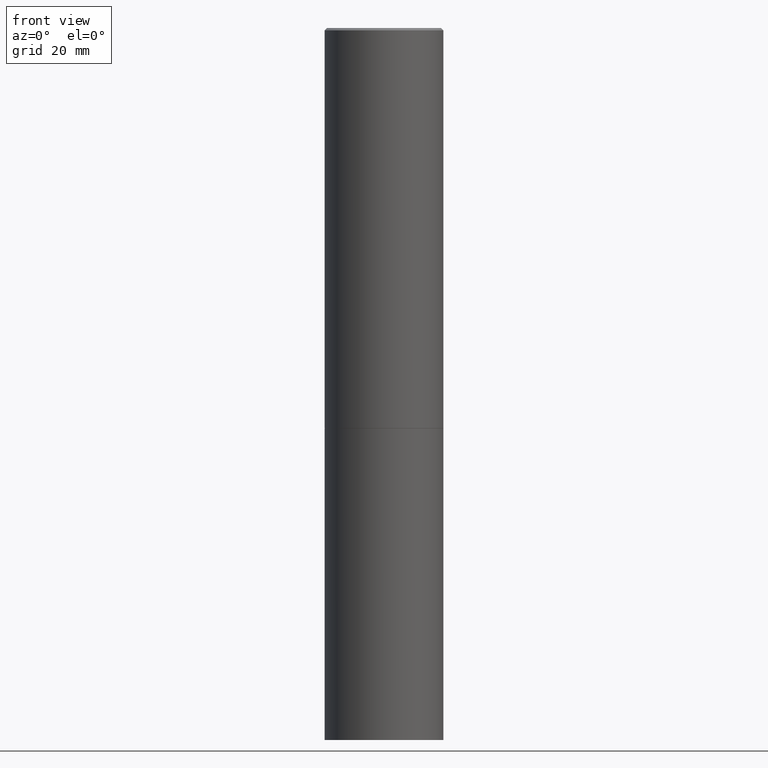
[diagram: clean part render]
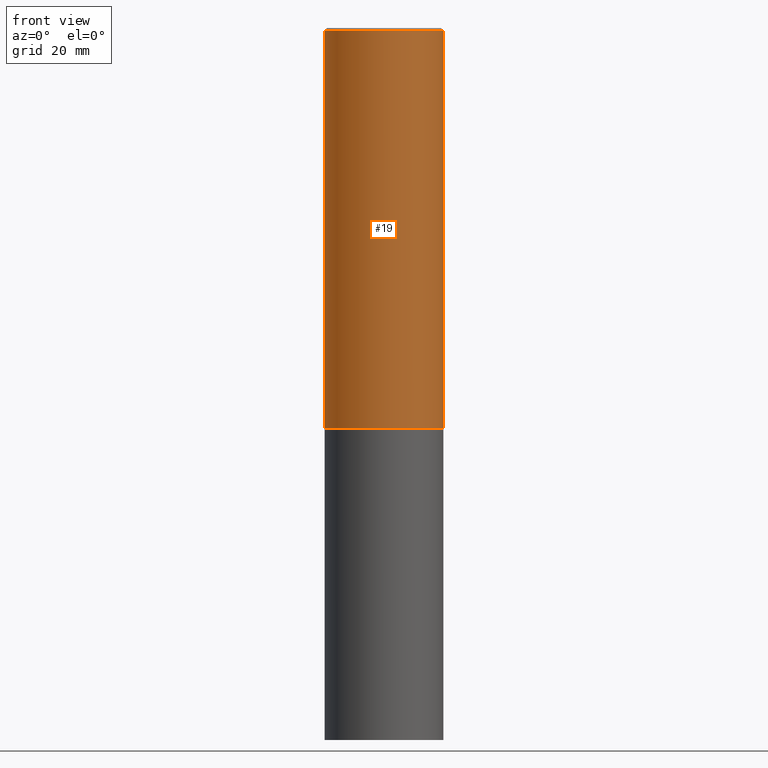
[diagram: same view with one face highlighted and labeled with its STEP entity id]
A machine part, front view. The second image highlights one B-rep face of the part: STEP entity #19.
In plain terms, the highlighted cylindrical surface (partial cylindrical patch) has radius 12.7 mm, axis along (-0, 0, 1).
Its self-contained STEP definition (entity closure, byte-faithful):
#1 = VECTOR ( 'NONE', #177, 39.37007874015748143 ) ;
#6 = AXIS2_PLACEMENT_3D ( 'NONE', #142, #8, #337 ) ;
#7 = CARTESIAN_POINT ( 'NONE',  ( 8.251011752068652653E-29, -1.178025803725677624E-14, -3.374000000000000554 ) ) ;
#8 = DIRECTION ( 'NONE',  ( -2.445468806185136597E-29, 3.491481338843145583E-15, 1.000000000000000000 ) ) ;
#9 = LINE ( 'NONE', #112, #351 ) ;
#16 = AXIS2_PLACEMENT_3D ( 'NONE', #201, #311, #47 ) ;
#19 = ADVANCED_FACE ( 'NONE', ( #59 ), #176, .T. ) ;
#40 = ORIENTED_EDGE ( 'NONE', *, *, #300, .T. ) ;
#42 = EDGE_LOOP ( 'NONE', ( #264, #40, #94, #309 ) ) ;
#47 = DIRECTION ( 'NONE',  ( 1.000000000000000000, -6.982962677686266711E-15, 0.000000000000000000 ) ) ;
#59 = FACE_OUTER_BOUND ( 'NONE', #42, .T. ) ;
#60 = CARTESIAN_POINT ( 'NONE',  ( 0.4999999999999997780, -3.491481338843131778E-15, 2.438088387897966775E-29 ) ) ;
#67 = CIRCLE ( 'NONE', #16, 0.4999999999999996114 ) ;
#76 = VERTEX_POINT ( 'NONE', #121 ) ;
#82 = CARTESIAN_POINT ( 'NONE',  ( -0.4999999999999996114, 3.421651712066267296E-15, -0.02000000000000010797 ) ) ;
#86 = CARTESIAN_POINT ( 'NONE',  ( -0.5000000000000000000, -2.372330153216316080E-15, -3.374000000000000554 ) ) ;
#94 = ORIENTED_EDGE ( 'NONE', *, *, #110, .T. ) ;
#110 = EDGE_CURVE ( 'NONE', #151, #76, #219, .T. ) ;
#112 = CARTESIAN_POINT ( 'NONE',  ( -0.4999999999999997780, 3.552713678800499352E-15, -2.459467545127452050E-29 ) ) ;
#121 = CARTESIAN_POINT ( 'NONE',  ( 0.4999999999999996114, -3.500078625662626318E-15, -0.02000000000000010797 ) ) ;
#125 = EDGE_CURVE ( 'NONE', #364, #329, #9, .T. ) ;
#142 = CARTESIAN_POINT ( 'NONE',  ( 0.000000000000000000, 0.000000000000000000, 0.000000000000000000 ) ) ;
#147 = CARTESIAN_POINT ( 'NONE',  ( 0.5000000000000000000, -1.527173937609990960E-14, -3.374000000000000554 ) ) ;
#148 = CIRCLE ( 'NONE', #216, 0.5000000000000000000 ) ;
#151 = VERTEX_POINT ( 'NONE', #147 ) ;
#176 = CYLINDRICAL_SURFACE ( 'NONE', #6, 0.4999999999999997780 ) ;
#177 = DIRECTION ( 'NONE',  ( -2.445468806185136877E-29, 3.491481338843145188E-15, 1.000000000000000000 ) ) ;
#201 = CARTESIAN_POINT ( 'NONE',  ( 4.890937612370299433E-31, -6.982962677686328587E-17, -0.02000000000000010797 ) ) ;
#208 = DIRECTION ( 'NONE',  ( -2.445468806185136597E-29, 3.491481338843145583E-15, 1.000000000000000000 ) ) ;
#216 = AXIS2_PLACEMENT_3D ( 'NONE', #7, #208, #348 ) ;
#219 = LINE ( 'NONE', #60, #1 ) ;
#239 = DIRECTION ( 'NONE',  ( -2.445468806185136877E-29, 3.491481338843145188E-15, 1.000000000000000000 ) ) ;
#261 = EDGE_CURVE ( 'NONE', #329, #76, #67, .T. ) ;
#264 = ORIENTED_EDGE ( 'NONE', *, *, #125, .F. ) ;
#300 = EDGE_CURVE ( 'NONE', #364, #151, #148, .T. ) ;
#309 = ORIENTED_EDGE ( 'NONE', *, *, #261, .F. ) ;
#311 = DIRECTION ( 'NONE',  ( -2.445468806185136597E-29, 3.491481338843145583E-15, 1.000000000000000000 ) ) ;
#329 = VERTEX_POINT ( 'NONE', #82 ) ;
#337 = DIRECTION ( 'NONE',  ( 1.000000000000000000, -6.982962677686266711E-15, 4.876176775795935793E-29 ) ) ;
#348 = DIRECTION ( 'NONE',  ( 1.000000000000000000, -6.982962677686266711E-15, 0.000000000000000000 ) ) ;
#351 = VECTOR ( 'NONE', #239, 39.37007874015748143 ) ;
#364 = VERTEX_POINT ( 'NONE', #86 ) ;